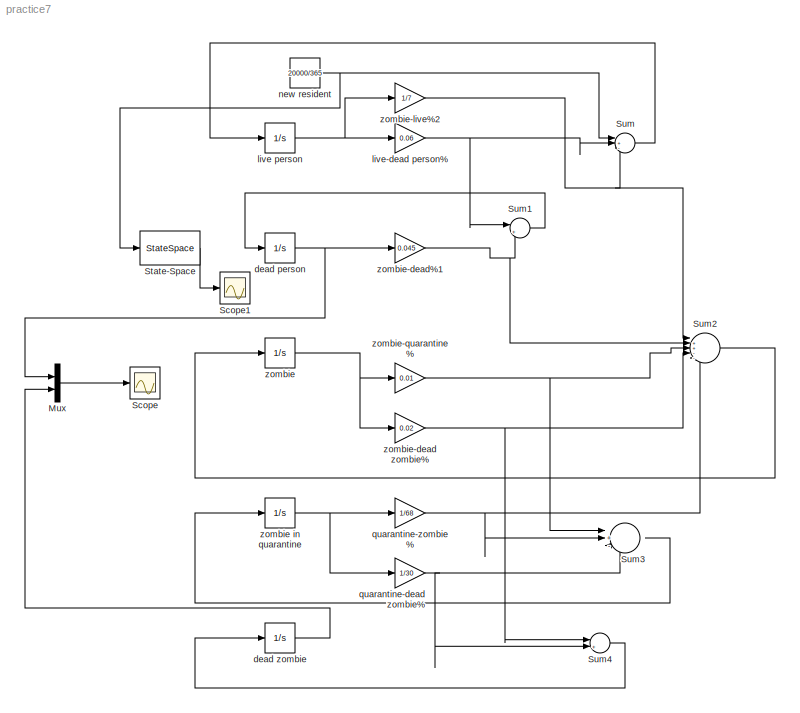
MODEL practice7
KIND model
BLOCK [Mux] Mux
  DisplayOption = bar
  Inputs = 2
  Ports = [2, 1]
  SID = 20
BLOCK [Scope] Scope
  DataFormat = StructureWithTime
  Floating = off
  NumInputPorts = 1
  Ports = [1]
  SID = 21
  SampleTime = 0
  ShowLegends = off
BLOCK [Scope] Scope1
  DataFormat = StructureWithTime
  Floating = off
  NumInputPorts = 1
  Ports = [1]
  SID = 28
  SampleTime = 0
  SaveName = ScopeData1
  ShowLegends = off
BLOCK [StateSpace] State-Space
  A = [-(1/7+0.06) 0 0 0 0;0.06 -0.045 0 0 0;1/7 0.045 -0.03 1/68 0;0 0 0.01 -(1/68+1/30) 0;0 0 0.02 1/30 0]
  B = [1;0;0;0;0]
  C = [0 1 0 0 0;0 0 0 0 1]
  D = [0;0]
  SID = 26
  X0 = [300000;0;1;0;0]
BLOCK [Sum] Sum
  IconShape = round
  InputSameDT = off
  Inputs = |+--
  OutDataTypeStr = Inherit: Inherit via internal rule
  Ports = [3, 1]
  SID = 7
  SaturateOnIntegerOverflow = off
BLOCK [Sum] Sum1
  IconShape = round
  InputSameDT = off
  Inputs = |+-
  OutDataTypeStr = Inherit: Inherit via internal rule
  Ports = [2, 1]
  SID = 12
  SaturateOnIntegerOverflow = off
BLOCK [Sum] Sum2
  IconShape = round
  InputSameDT = off
  Inputs = |++--+
  OutDataTypeStr = Inherit: Inherit via internal rule
  Ports = [5, 1]
  SID = 15
  SaturateOnIntegerOverflow = off
BLOCK [Sum] Sum3
  IconShape = round
  InputSameDT = off
  Inputs = |+--
  OutDataTypeStr = Inherit: Inherit via internal rule
  Ports = [3, 1]
  SID = 18
  SaturateOnIntegerOverflow = off
BLOCK [Sum] Sum4
  IconShape = round
  InputSameDT = off
  Inputs = |++
  OutDataTypeStr = Inherit: Inherit via internal rule
  Ports = [2, 1]
  SID = 19
  SaturateOnIntegerOverflow = off
BLOCK [Integrator] dead person
  Ports = [1, 1]
  SID = 2
BLOCK [Integrator] dead zombie
  Ports = [1, 1]
  SID = 5
BLOCK [Integrator] live person
  InitialCondition = 300000
  Ports = [1, 1]
  SID = 1
BLOCK [Gain] live-dead person%
  Gain = 0.06
  OutDataTypeStr = Inherit: Inherit via internal rule
  ParamDataTypeStr = Inherit: Inherit via internal rule
  SID = 8
  SaturateOnIntegerOverflow = off
BLOCK [Constant] new resident
  SID = 6
  Value = 20000/365
BLOCK [Gain] quarantine-dead zombie%
  Gain = 1/30
  OutDataTypeStr = Inherit: Inherit via internal rule
  ParamDataTypeStr = Inherit: Inherit via internal rule
  SID = 17
  SaturateOnIntegerOverflow = off
BLOCK [Gain] quarantine-zombie%
  Gain = 1/68
  OutDataTypeStr = Inherit: Inherit via internal rule
  ParamDataTypeStr = Inherit: Inherit via internal rule
  SID = 16
  SaturateOnIntegerOverflow = off
BLOCK [Integrator] zombie
  InitialCondition = 1
  Ports = [1, 1]
  SID = 3
BLOCK [Integrator] zombie in quarantine
  Ports = [1, 1]
  SID = 4
BLOCK [Gain] zombie-dead zombie%
  Gain = 0.02
  OutDataTypeStr = Inherit: Inherit via internal rule
  ParamDataTypeStr = Inherit: Inherit via internal rule
  SID = 13
  SaturateOnIntegerOverflow = off
BLOCK [Gain] zombie-dead%1
  Gain = 0.045
  OutDataTypeStr = Inherit: Inherit via internal rule
  ParamDataTypeStr = Inherit: Inherit via internal rule
  SID = 25
  SaturateOnIntegerOverflow = off
BLOCK [Gain] zombie-live%2
  Gain = 1/7
  OutDataTypeStr = Inherit: Inherit via internal rule
  ParamDataTypeStr = Inherit: Inherit via internal rule
  SID = 24
  SaturateOnIntegerOverflow = off
BLOCK [Gain] zombie-quarantine%
  Gain = 0.01
  OutDataTypeStr = Inherit: Inherit via internal rule
  ParamDataTypeStr = Inherit: Inherit via internal rule
  SID = 14
  SaturateOnIntegerOverflow = off
LINE Mux:1 -> Scope:1
LINE State-Space:1 -> Scope1:1
LINE Sum1:1 -> dead person:1
LINE Sum2:1 -> zombie:1
LINE Sum3:1 -> zombie in quarantine:1
LINE Sum4:1 -> dead zombie:1
LINE Sum:1 -> live person:1
NET dead person:1 -> Mux:1, zombie-dead%1:1
LINE dead zombie:1 -> Mux:2
NET live person:1 -> live-dead person%:1, zombie-live%2:1
NET live-dead person%:1 -> Sum1:1, Sum:2
NET new resident:1 -> State-Space:1, Sum:1
NET quarantine-dead zombie%:1 -> Sum3:3, Sum4:2
NET quarantine-zombie%:1 -> Sum2:5, Sum3:2
NET zombie in quarantine:1 -> quarantine-dead zombie%:1, quarantine-zombie%:1
NET zombie-dead zombie%:1 -> Sum2:4, Sum4:1
NET zombie-dead%1:1 -> Sum1:2, Sum2:2
NET zombie-live%2:1 -> Sum2:1, Sum:3
NET zombie-quarantine%:1 -> Sum2:3, Sum3:1
NET zombie:1 -> zombie-dead zombie%:1, zombie-quarantine%:1
note: NET lines group one-source signal fan-out (src -> all destinations, sorted); 1:1 wires keep LINE
